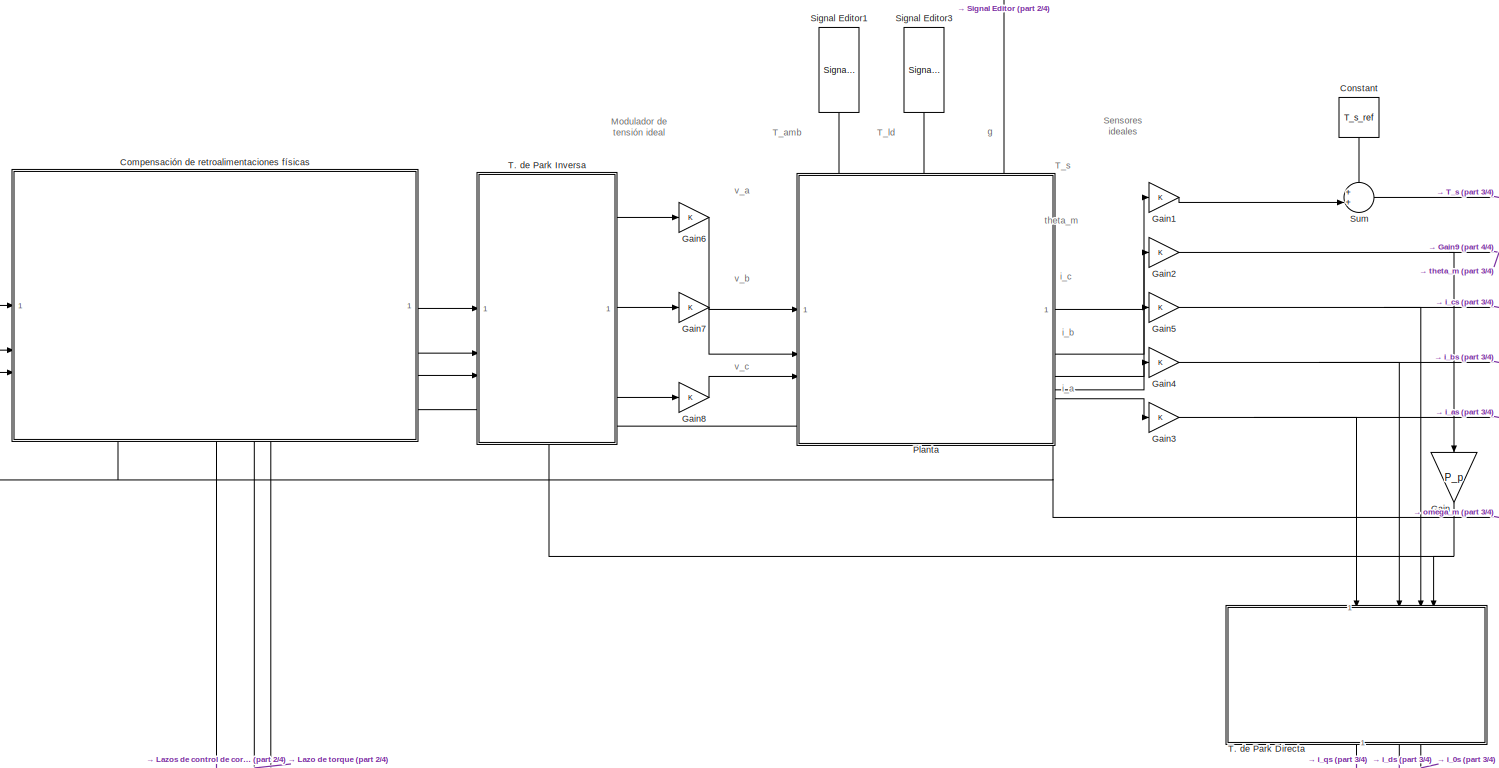
[diagram: root canvas - part 1/4, center side, full height]
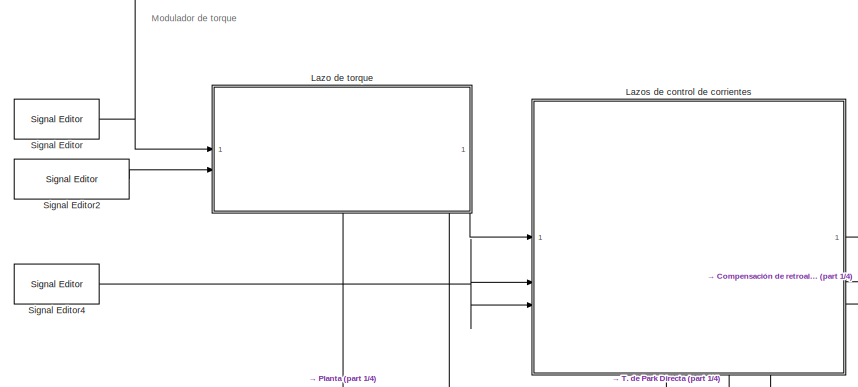
[diagram: root canvas - part 2/4, middle left region]
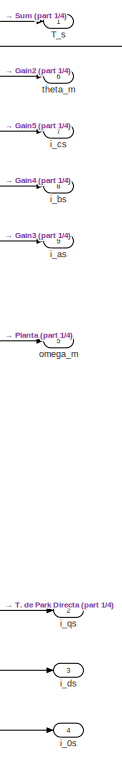
[diagram: root canvas - part 3/4, right side, full height]
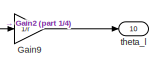
[diagram: root canvas - part 4/4, top right region]
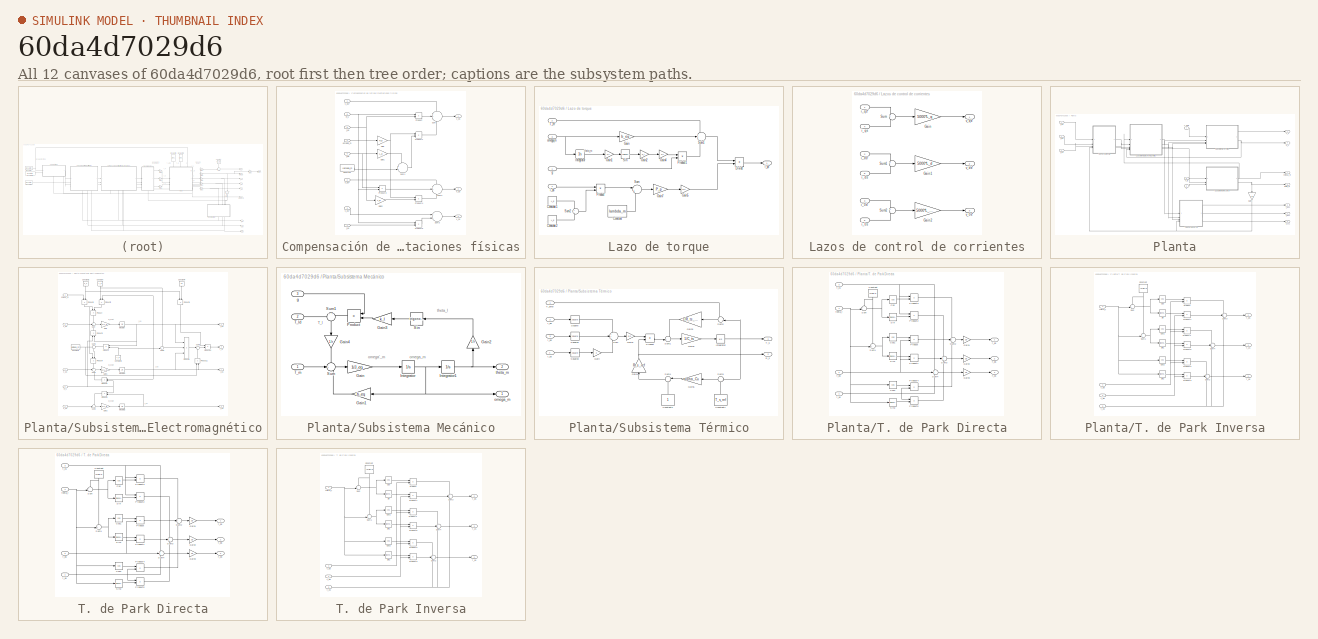
[diagram: thumbnail index - all 12 canvases of the model, root first then tree order]
MODEL slx_60da4d7029d6
KIND model
CONFIG AbsTol = auto
CONFIG EnableMultiTasking = off
CONFIG FixedStep = auto
CONFIG MaxStep = 1e-4
CONFIG MinStep = auto
CONFIG RelTol = 1e-3
CONFIG SampleTimeConstraint = Unconstrained
CONFIG SolverName = VariableStepAuto
CONFIG StartTime = 0.0
CONFIG StopTime = 10.0
BLOCK [SubSystem] Compensación de retroalimentaciones físicas
  NameLocation = top
  PortSchema = {"entries":[{"content":{"sides":[{"content":{"connectorIds":["In1","In2","In3"]},"type":"ConnectorPlacement.EquallySpacedRectSide","uuid":"b5ed5c11-da0b-4492-b556-0278b7db3ced"},{"content":{"connectorIds":["Out1","Out2","Out3"],"side":"RIGHT"},"type":"ConnectorPlacement.EquallySpacedRectSide","uuid":"4ffb454c-6b84-49e0-96c1-bca9b0e6e9fb"},{"content":{"side":"TOP"},"type":"ConnectorPlacement.Equall...<+421ch>
BLOCK [Constant] Compensación de retroalimentaciones físicas/Constant
  Value = lambda_m
BLOCK [Gain] Compensación de retroalimentaciones físicas/Gain
  Gain = P_p
BLOCK [Gain] Compensación de retroalimentaciones físicas/Gain1
  Gain = L_d
BLOCK [Gain] Compensación de retroalimentaciones físicas/Gain2
  Gain = L_q
BLOCK [Product] Compensación de retroalimentaciones físicas/Product
BLOCK [Product] Compensación de retroalimentaciones físicas/Product1
BLOCK [Product] Compensación de retroalimentaciones físicas/Product3
BLOCK [Product] Compensación de retroalimentaciones físicas/Product4
BLOCK [Product] Compensación de retroalimentaciones físicas/Product5
BLOCK [Inport] Compensación de retroalimentaciones físicas/R_s
  Port = 8
BLOCK [Sum] Compensación de retroalimentaciones físicas/Sum
  Inputs = +++
BLOCK [Sum] Compensación de retroalimentaciones físicas/Sum1
  Inputs = ++|
BLOCK [Sum] Compensación de retroalimentaciones físicas/Sum2
  Inputs = ++-
BLOCK [Sum] Compensación de retroalimentaciones físicas/Sum3
BLOCK [Inport] Compensación de retroalimentaciones físicas/i_0s
  Port = 7
BLOCK [Inport] Compensación de retroalimentaciones físicas/i_ds
  Port = 6
BLOCK [Inport] Compensación de retroalimentaciones físicas/i_qs
  Port = 5
BLOCK [Inport] Compensación de retroalimentaciones físicas/omega_m
  Port = 4
BLOCK [Outport] Compensación de retroalimentaciones físicas/v_0s
  Port = 3
BLOCK [Inport] Compensación de retroalimentaciones físicas/v_0s*
  Port = 3
BLOCK [Outport] Compensación de retroalimentaciones físicas/v_ds
  Port = 2
BLOCK [Inport] Compensación de retroalimentaciones físicas/v_ds*
  Port = 2
BLOCK [Outport] Compensación de retroalimentaciones físicas/v_qs
BLOCK [Inport] Compensación de retroalimentaciones físicas/v_qs*
BLOCK [Constant] Constant
  NameLocation = left
  Value = T_s_ref
BLOCK [Gain] Gain
  Gain = P_p
  NameLocation = left
BLOCK [Gain] Gain1
BLOCK [Gain] Gain2
BLOCK [Gain] Gain3
BLOCK [Gain] Gain4
BLOCK [Gain] Gain5
BLOCK [Gain] Gain6
BLOCK [Gain] Gain7
BLOCK [Gain] Gain8
BLOCK [Gain] Gain9
  Gain = 1/r
BLOCK [SubSystem] Lazo de torque
  NameLocation = top
  PortSchema = {"entries":[{"content":{"sides":[{"content":{"connectorIds":["In1","In2"]},"type":"ConnectorPlacement.EquallySpacedRectSide","uuid":"8206a9f4-776d-4700-8d59-1e7f7fd13a0b"},{"content":{"connectorIds":["Out1"],"side":"RIGHT"},"type":"ConnectorPlacement.EquallySpacedRectSide","uuid":"8dfad5cb-777d-40bc-a4fd-4d81a554efcb"},{"content":{"side":"TOP"},"type":"ConnectorPlacement.EquallySpacedRectSide","uu...<+383ch>
BLOCK [Constant] Lazo de torque/Constant
  Value = lambda_m
BLOCK [Constant] Lazo de torque/Constant1
  Value = L_d
BLOCK [Constant] Lazo de torque/Constant2
  Value = L_q
BLOCK [Product] Lazo de torque/Divide
  Inputs = */
BLOCK [Gain] Lazo de torque/Gain
  Gain = b_eq
BLOCK [Gain] Lazo de torque/Gain1
  Gain = 1/r
BLOCK [Gain] Lazo de torque/Gain2
  Gain = k_l
BLOCK [Gain] Lazo de torque/Gain4
  Gain = 1/r
BLOCK [Gain] Lazo de torque/Gain5
  Gain = 3/2
BLOCK [Gain] Lazo de torque/Gain7
  Gain = P_p
BLOCK [Integrator] Lazo de torque/Integrator
BLOCK [Product] Lazo de torque/Product
BLOCK [Product] Lazo de torque/Product1
BLOCK [Trigonometry] Lazo de torque/Sin
BLOCK [Sum] Lazo de torque/Sum
  Inputs = |++
BLOCK [Sum] Lazo de torque/Sum1
  Inputs = +++
BLOCK [Sum] Lazo de torque/Sum2
  Inputs = +-
BLOCK [Inport] Lazo de torque/T_m*
  Port = 2
BLOCK [Inport] Lazo de torque/g
BLOCK [Inport] Lazo de torque/i_ds
  Port = 4
BLOCK [Outport] Lazo de torque/i_qs*
BLOCK [Inport] Lazo de torque/omega_m
  Port = 3
BLOCK [SubSystem] Lazos de control de corrientes
  NameLocation = top
  PortSchema = {"entries":[{"content":{"sides":[{"content":{"connectorIds":["In1","In2","In3"]},"type":"ConnectorPlacement.EquallySpacedRectSide","uuid":"2f15f3ec-55f2-436f-b3eb-211a2ca8ae15"},{"content":{"connectorIds":["Out1","Out2","Out3"],"side":"RIGHT"},"type":"ConnectorPlacement.EquallySpacedRectSide","uuid":"f2c717e7-b0ea-44b1-badc-d00bfa8ee529"},{"content":{"side":"TOP"},"type":"ConnectorPlacement.Equall...<+409ch>
BLOCK [Gain] Lazos de control de corrientes/Gain
  Gain = 5000*L_q
BLOCK [Gain] Lazos de control de corrientes/Gain1
  Gain = 5000*L_d
BLOCK [Gain] Lazos de control de corrientes/Gain2
  Gain = 5000*L_ls
BLOCK [Sum] Lazos de control de corrientes/Sum
  Inputs = +-
BLOCK [Sum] Lazos de control de corrientes/Sum1
  Inputs = +-
BLOCK [Sum] Lazos de control de corrientes/Sum2
  Inputs = +-
BLOCK [Inport] Lazos de control de corrientes/i_0s
  Port = 6
BLOCK [Inport] Lazos de control de corrientes/i_0s*
  Port = 3
BLOCK [Inport] Lazos de control de corrientes/i_ds
  Port = 5
BLOCK [Inport] Lazos de control de corrientes/i_ds*
  Port = 2
BLOCK [Inport] Lazos de control de corrientes/i_qs
  Port = 4
BLOCK [Inport] Lazos de control de corrientes/i_qs*
BLOCK [Outport] Lazos de control de corrientes/v_0s*
  Port = 3
BLOCK [Outport] Lazos de control de corrientes/v_ds*
  Port = 2
BLOCK [Outport] Lazos de control de corrientes/v_qs*
BLOCK [SubSystem] Planta
  PortSchema = {"entries":[{"content":{"sides":[{"content":{"connectorIds":["In1","In2","In3"]},"type":"ConnectorPlacement.EquallySpacedRectSide","uuid":"9ff39df0-8326-46b1-b650-24ffd78ea64a"},{"content":{"connectorIds":["Out1","Out2","Out3","Out4","Out5"],"side":"RIGHT"},"type":"ConnectorPlacement.EquallySpacedRectSide","uuid":"3d3bc9f1-e392-438d-8ee1-0a3eb241c21d"},{"content":{"connectorIds":["In4","In5","In6"...<+454ch>
BLOCK [Gain] Planta/Gain
  Gain = P_p
  NameLocation = left
BLOCK [Outport] Planta/R_s
  Port = 6
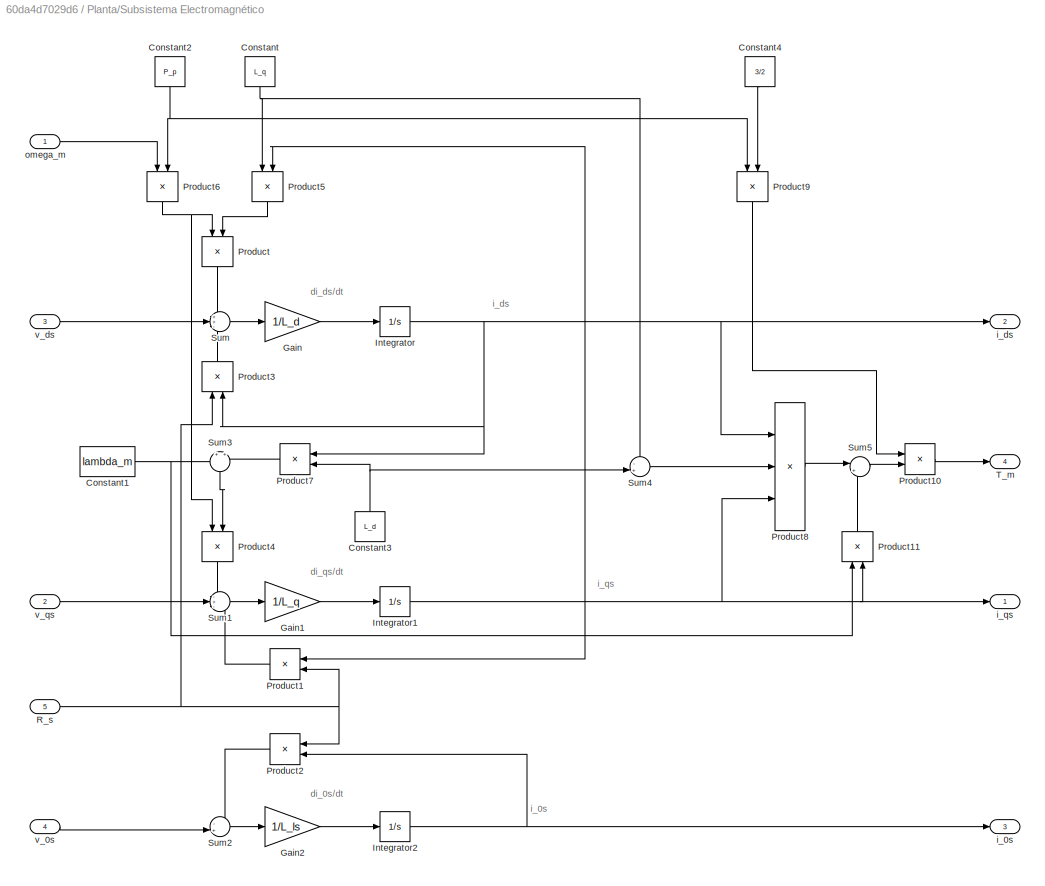
BLOCK [SubSystem] Planta/Subsistema Electromagnético
  NameLocation = top
BLOCK [Constant] Planta/Subsistema Electromagnético/Constant
  NameLocation = left
  Value = L_q
BLOCK [Constant] Planta/Subsistema Electromagnético/Constant1
  Value = lambda_m
BLOCK [Constant] Planta/Subsistema Electromagnético/Constant2
  NameLocation = left
  Value = P_p
BLOCK [Constant] Planta/Subsistema Electromagnético/Constant3
  NameLocation = right
  Value = L_d
BLOCK [Constant] Planta/Subsistema Electromagnético/Constant4
  NameLocation = left
  Value = 3/2
BLOCK [Gain] Planta/Subsistema Electromagnético/Gain
  Gain = 1/L_d
BLOCK [Gain] Planta/Subsistema Electromagnético/Gain1
  Gain = 1/L_q
BLOCK [Gain] Planta/Subsistema Electromagnético/Gain2
  Gain = 1/L_ls
BLOCK [Integrator] Planta/Subsistema Electromagnético/Integrator
BLOCK [Integrator] Planta/Subsistema Electromagnético/Integrator1
BLOCK [Integrator] Planta/Subsistema Electromagnético/Integrator2
BLOCK [Product] Planta/Subsistema Electromagnético/Product
  NameLocation = left
BLOCK [Product] Planta/Subsistema Electromagnético/Product1
BLOCK [Product] Planta/Subsistema Electromagnético/Product10
BLOCK [Product] Planta/Subsistema Electromagnético/Product11
  NameLocation = right
BLOCK [Product] Planta/Subsistema Electromagnético/Product2
BLOCK [Product] Planta/Subsistema Electromagnético/Product3
  NameLocation = left
BLOCK [Product] Planta/Subsistema Electromagnético/Product4
  NameLocation = left
BLOCK [Product] Planta/Subsistema Electromagnético/Product5
  NameLocation = left
BLOCK [Product] Planta/Subsistema Electromagnético/Product6
  NameLocation = left
BLOCK [Product] Planta/Subsistema Electromagnético/Product7
BLOCK [Product] Planta/Subsistema Electromagnético/Product8
  Inputs = 3
BLOCK [Product] Planta/Subsistema Electromagnético/Product9
  NameLocation = left
BLOCK [Inport] Planta/Subsistema Electromagnético/R_s
  Port = 5
BLOCK [Sum] Planta/Subsistema Electromagnético/Sum
  Inputs = ++-
BLOCK [Sum] Planta/Subsistema Electromagnético/Sum1
  Inputs = -+-
BLOCK [Sum] Planta/Subsistema Electromagnético/Sum2
  Inputs = -+|
BLOCK [Sum] Planta/Subsistema Electromagnético/Sum3
  Inputs = +|+
  NameLocation = left
BLOCK [Sum] Planta/Subsistema Electromagnético/Sum4
  Inputs = -+|
BLOCK [Sum] Planta/Subsistema Electromagnético/Sum5
  Inputs = |++
BLOCK [Outport] Planta/Subsistema Electromagnético/T_m
  Port = 4
BLOCK [Outport] Planta/Subsistema Electromagnético/i_0s
  Port = 3
BLOCK [Outport] Planta/Subsistema Electromagnético/i_ds
  Port = 2
BLOCK [Outport] Planta/Subsistema Electromagnético/i_qs
BLOCK [Inport] Planta/Subsistema Electromagnético/omega_m
BLOCK [Inport] Planta/Subsistema Electromagnético/v_0s
  Port = 4
BLOCK [Inport] Planta/Subsistema Electromagnético/v_ds
  Port = 3
BLOCK [Inport] Planta/Subsistema Electromagnético/v_qs
  Port = 2
BLOCK [SubSystem] Planta/Subsistema Mecánico
BLOCK [Gain] Planta/Subsistema Mecánico/Gain
  Gain = 1/J_eq
BLOCK [Gain] Planta/Subsistema Mecánico/Gain1
  Gain = b_eq
BLOCK [Gain] Planta/Subsistema Mecánico/Gain2
  Gain = 1/r
  NameLocation = right
BLOCK [Gain] Planta/Subsistema Mecánico/Gain3
  Gain = k_l
BLOCK [Gain] Planta/Subsistema Mecánico/Gain4
  Gain = 1/r
  NameLocation = right
BLOCK [Integrator] Planta/Subsistema Mecánico/Integrator
BLOCK [Integrator] Planta/Subsistema Mecánico/Integrator1
BLOCK [Product] Planta/Subsistema Mecánico/Product
BLOCK [Trigonometry] Planta/Subsistema Mecánico/Sin
BLOCK [Sum] Planta/Subsistema Mecánico/Sum
  Inputs = -+-
BLOCK [Sum] Planta/Subsistema Mecánico/Sum1
  NameLocation = left
BLOCK [Inport] Planta/Subsistema Mecánico/T_ld
  Port = 2
BLOCK [Inport] Planta/Subsistema Mecánico/T_m
BLOCK [Inport] Planta/Subsistema Mecánico/g
  Port = 3
BLOCK [Outport] Planta/Subsistema Mecánico/omega_m
BLOCK [Outport] Planta/Subsistema Mecánico/theta_m
  Port = 2
BLOCK [SubSystem] Planta/Subsistema Térmico
  NameLocation = top
BLOCK [Constant] Planta/Subsistema Térmico/Constant1
  NameLocation = right
  Value = T_s_ref
BLOCK [Constant] Planta/Subsistema Térmico/Constant2
  NameLocation = right
BLOCK [Gain] Planta/Subsistema Térmico/Gain
  Gain = 2
BLOCK [Gain] Planta/Subsistema Térmico/Gain1
  Gain = 3/2
BLOCK [Gain] Planta/Subsistema Térmico/Gain2
  Gain = 1/C_ts
BLOCK [Gain] Planta/Subsistema Térmico/Gain3
  Gain = 1/R_ts_amb
BLOCK [Gain] Planta/Subsistema Térmico/Gain4
  Gain = R_s_ref
  NameLocation = right
BLOCK [Gain] Planta/Subsistema Térmico/Gain5
  Gain = alpha_Cu
BLOCK [Integrator] Planta/Subsistema Térmico/Integrator
BLOCK [Product] Planta/Subsistema Térmico/Product
BLOCK [Outport] Planta/Subsistema Térmico/R_s
  Port = 2
BLOCK [Math] Planta/Subsistema Térmico/Square
  Operator = square
BLOCK [Math] Planta/Subsistema Térmico/Square1
  Operator = square
BLOCK [Math] Planta/Subsistema Térmico/Square2
  Operator = square
BLOCK [Sum] Planta/Subsistema Térmico/Sum
  Inputs = +++
BLOCK [Sum] Planta/Subsistema Térmico/Sum1
  Inputs = -+|
BLOCK [Sum] Planta/Subsistema Térmico/Sum2
  Inputs = -+|
BLOCK [Sum] Planta/Subsistema Térmico/Sum3
  Inputs = |+-
BLOCK [Sum] Planta/Subsistema Térmico/Sum4
  Inputs = |++
BLOCK [Inport] Planta/Subsistema Térmico/T_amb
BLOCK [Outport] Planta/Subsistema Térmico/T_s
BLOCK [Inport] Planta/Subsistema Térmico/i_0s
  Port = 4
BLOCK [Inport] Planta/Subsistema Térmico/i_ds
  Port = 3
BLOCK [Inport] Planta/Subsistema Térmico/i_qs
  Port = 2
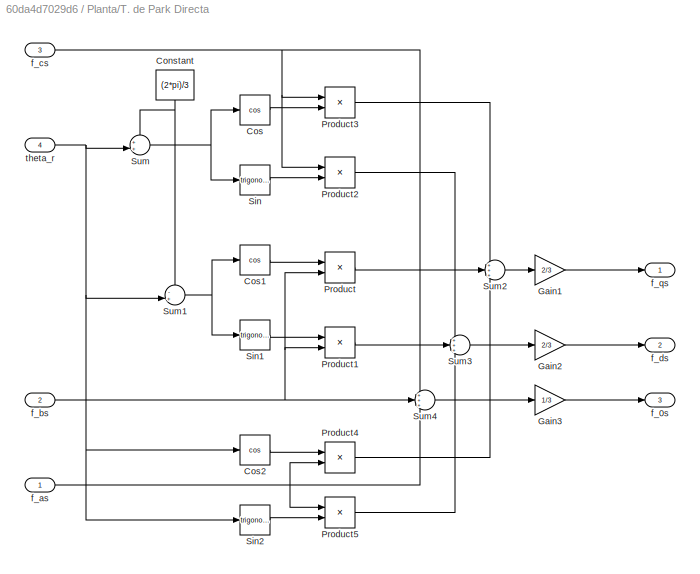
BLOCK [SubSystem] Planta/T. de Park Directa
  NameLocation = top
BLOCK [Constant] Planta/T. de Park Directa/Constant
  NameLocation = left
  Value = (2*pi)/3
BLOCK [Trigonometry] Planta/T. de Park Directa/Cos
  Operator = cos
BLOCK [Trigonometry] Planta/T. de Park Directa/Cos1
  Operator = cos
BLOCK [Trigonometry] Planta/T. de Park Directa/Cos2
  Operator = cos
BLOCK [Gain] Planta/T. de Park Directa/Gain1
  Gain = 2/3
BLOCK [Gain] Planta/T. de Park Directa/Gain2
  Gain = 2/3
BLOCK [Gain] Planta/T. de Park Directa/Gain3
  Gain = 1/3
BLOCK [Product] Planta/T. de Park Directa/Product
BLOCK [Product] Planta/T. de Park Directa/Product1
BLOCK [Product] Planta/T. de Park Directa/Product2
BLOCK [Product] Planta/T. de Park Directa/Product3
BLOCK [Product] Planta/T. de Park Directa/Product4
BLOCK [Product] Planta/T. de Park Directa/Product5
BLOCK [Trigonometry] Planta/T. de Park Directa/Sin
BLOCK [Trigonometry] Planta/T. de Park Directa/Sin1
BLOCK [Trigonometry] Planta/T. de Park Directa/Sin2
BLOCK [Sum] Planta/T. de Park Directa/Sum
  Inputs = ++|
BLOCK [Sum] Planta/T. de Park Directa/Sum1
  Inputs = -+|
BLOCK [Sum] Planta/T. de Park Directa/Sum2
  Inputs = +++
BLOCK [Sum] Planta/T. de Park Directa/Sum3
  Inputs = +++
BLOCK [Sum] Planta/T. de Park Directa/Sum4
  Inputs = +++
BLOCK [Outport] Planta/T. de Park Directa/f_0s
  Port = 3
BLOCK [Inport] Planta/T. de Park Directa/f_as
BLOCK [Inport] Planta/T. de Park Directa/f_bs
  Port = 2
BLOCK [Inport] Planta/T. de Park Directa/f_cs
  Port = 3
BLOCK [Outport] Planta/T. de Park Directa/f_ds
  Port = 2
BLOCK [Outport] Planta/T. de Park Directa/f_qs
BLOCK [Inport] Planta/T. de Park Directa/theta_r
  Port = 4
BLOCK [SubSystem] Planta/T. de Park Inversa
  NameLocation = top
BLOCK [Constant] Planta/T. de Park Inversa/Constant
  NameLocation = left
  Value = (2*pi)/3
BLOCK [Trigonometry] Planta/T. de Park Inversa/Cos
  Operator = cos
BLOCK [Trigonometry] Planta/T. de Park Inversa/Cos1
  Operator = cos
BLOCK [Trigonometry] Planta/T. de Park Inversa/Cos2
  Operator = cos
BLOCK [Product] Planta/T. de Park Inversa/Product
BLOCK [Product] Planta/T. de Park Inversa/Product1
BLOCK [Product] Planta/T. de Park Inversa/Product2
BLOCK [Product] Planta/T. de Park Inversa/Product3
BLOCK [Product] Planta/T. de Park Inversa/Product4
BLOCK [Product] Planta/T. de Park Inversa/Product5
BLOCK [Trigonometry] Planta/T. de Park Inversa/Sin
BLOCK [Trigonometry] Planta/T. de Park Inversa/Sin1
BLOCK [Trigonometry] Planta/T. de Park Inversa/Sin2
BLOCK [Sum] Planta/T. de Park Inversa/Sum
  Inputs = -+|
BLOCK [Sum] Planta/T. de Park Inversa/Sum1
  Inputs = ++|
BLOCK [Sum] Planta/T. de Park Inversa/Sum2
  Inputs = +++
BLOCK [Sum] Planta/T. de Park Inversa/Sum3
  Inputs = +++
BLOCK [Sum] Planta/T. de Park Inversa/Sum4
  Inputs = +++
BLOCK [Inport] Planta/T. de Park Inversa/f_0s
  Port = 3
BLOCK [Outport] Planta/T. de Park Inversa/f_as
BLOCK [Outport] Planta/T. de Park Inversa/f_bs
  Port = 2
BLOCK [Outport] Planta/T. de Park Inversa/f_cs
  Port = 3
BLOCK [Inport] Planta/T. de Park Inversa/f_ds
  Port = 2
BLOCK [Inport] Planta/T. de Park Inversa/f_qs
BLOCK [Inport] Planta/T. de Park Inversa/theta_r
  Port = 4
BLOCK [Inport] Planta/T_amb
  Port = 4
BLOCK [Inport] Planta/T_ld
  Port = 5
BLOCK [Outport] Planta/T_s
BLOCK [Inport] Planta/f_as
BLOCK [Outport] Planta/f_as1
  Port = 5
BLOCK [Inport] Planta/f_bs
  Port = 2
BLOCK [Outport] Planta/f_bs1
  Port = 4
BLOCK [Inport] Planta/f_cs
  Port = 3
BLOCK [Outport] Planta/f_cs1
  Port = 3
BLOCK [Inport] Planta/g
  Port = 6
BLOCK [Outport] Planta/omega_m
  Port = 7
BLOCK [Outport] Planta/theta_m
  Port = 2
BLOCK [Reference] Signal Editor  REF=SignalEditorBlockLib/Signal Editor
  LibrarySourceBlock = simulink/Sources/Signal Editor
  SourceBlock = SignalEditorBlockLib/Signal Editor
  SourceType = SignalEditor
  UserDataPersistent = on
BLOCK [Reference] Signal Editor1  REF=SignalEditorBlockLib/Signal Editor
  LibrarySourceBlock = simulink/Sources/Signal Editor
  NameLocation = left
  SourceBlock = SignalEditorBlockLib/Signal Editor
  SourceType = SignalEditor
  UserDataPersistent = on
BLOCK [Reference] Signal Editor2  REF=SignalEditorBlockLib/Signal Editor
  LibrarySourceBlock = simulink/Sources/Signal Editor
  SourceBlock = SignalEditorBlockLib/Signal Editor
  SourceType = SignalEditor
  UserDataPersistent = on
BLOCK [Reference] Signal Editor3  REF=SignalEditorBlockLib/Signal Editor
  LibrarySourceBlock = simulink/Sources/Signal Editor
  NameLocation = left
  SourceBlock = SignalEditorBlockLib/Signal Editor
  SourceType = SignalEditor
  UserDataPersistent = on
BLOCK [Reference] Signal Editor4  REF=SignalEditorBlockLib/Signal Editor
  LibrarySourceBlock = simulink/Sources/Signal Editor
  SourceBlock = SignalEditorBlockLib/Signal Editor
  SourceType = SignalEditor
  UserDataPersistent = on
BLOCK [Sum] Sum
  Inputs = ++|
BLOCK [SubSystem] T. de Park Directa
  NameLocation = right
BLOCK [Constant] T. de Park Directa/Constant
  NameLocation = left
  Value = (2*pi)/3
BLOCK [Trigonometry] T. de Park Directa/Cos
  Operator = cos
BLOCK [Trigonometry] T. de Park Directa/Cos1
  Operator = cos
BLOCK [Trigonometry] T. de Park Directa/Cos2
  Operator = cos
BLOCK [Gain] T. de Park Directa/Gain1
  Gain = 2/3
BLOCK [Gain] T. de Park Directa/Gain2
  Gain = 2/3
BLOCK [Gain] T. de Park Directa/Gain3
  Gain = 1/3
BLOCK [Product] T. de Park Directa/Product
BLOCK [Product] T. de Park Directa/Product1
BLOCK [Product] T. de Park Directa/Product2
BLOCK [Product] T. de Park Directa/Product3
BLOCK [Product] T. de Park Directa/Product4
BLOCK [Product] T. de Park Directa/Product5
BLOCK [Trigonometry] T. de Park Directa/Sin
BLOCK [Trigonometry] T. de Park Directa/Sin1
BLOCK [Trigonometry] T. de Park Directa/Sin2
BLOCK [Sum] T. de Park Directa/Sum
  Inputs = ++|
BLOCK [Sum] T. de Park Directa/Sum1
  Inputs = -+|
BLOCK [Sum] T. de Park Directa/Sum2
  Inputs = +++
BLOCK [Sum] T. de Park Directa/Sum3
  Inputs = +++
BLOCK [Sum] T. de Park Directa/Sum4
  Inputs = +++
BLOCK [Outport] T. de Park Directa/f_0s
  Port = 3
BLOCK [Inport] T. de Park Directa/f_as
BLOCK [Inport] T. de Park Directa/f_bs
  Port = 2
BLOCK [Inport] T. de Park Directa/f_cs
  Port = 3
BLOCK [Outport] T. de Park Directa/f_ds
  Port = 2
BLOCK [Outport] T. de Park Directa/f_qs
BLOCK [Inport] T. de Park Directa/theta_r
  Port = 4
BLOCK [SubSystem] T. de Park Inversa
  NameLocation = top
  PortSchema = {"entries":[{"content":{"sides":[{"content":{"connectorIds":["In1","In2","In3"]},"type":"ConnectorPlacement.EquallySpacedRectSide","uuid":"87a6b8c1-3fd8-4d15-81b7-6d19a59b6fe3"},{"content":{"connectorIds":["Out1","Out2","Out3"],"side":"RIGHT"},"type":"ConnectorPlacement.EquallySpacedRectSide","uuid":"ab7c1476-3519-4f3e-a604-adca334ac53f"},{"content":{"side":"TOP"},"type":"ConnectorPlacement.Equall...<+397ch>
BLOCK [Constant] T. de Park Inversa/Constant
  NameLocation = left
  Value = (2*pi)/3
BLOCK [Trigonometry] T. de Park Inversa/Cos
  Operator = cos
BLOCK [Trigonometry] T. de Park Inversa/Cos1
  Operator = cos
BLOCK [Trigonometry] T. de Park Inversa/Cos2
  Operator = cos
BLOCK [Product] T. de Park Inversa/Product
BLOCK [Product] T. de Park Inversa/Product1
BLOCK [Product] T. de Park Inversa/Product2
BLOCK [Product] T. de Park Inversa/Product3
BLOCK [Product] T. de Park Inversa/Product4
BLOCK [Product] T. de Park Inversa/Product5
BLOCK [Trigonometry] T. de Park Inversa/Sin
BLOCK [Trigonometry] T. de Park Inversa/Sin1
BLOCK [Trigonometry] T. de Park Inversa/Sin2
BLOCK [Sum] T. de Park Inversa/Sum
  Inputs = -+|
BLOCK [Sum] T. de Park Inversa/Sum1
  Inputs = ++|
BLOCK [Sum] T. de Park Inversa/Sum2
  Inputs = +++
BLOCK [Sum] T. de Park Inversa/Sum3
  Inputs = +++
BLOCK [Sum] T. de Park Inversa/Sum4
  Inputs = +++
BLOCK [Inport] T. de Park Inversa/f_0s
  Port = 3
BLOCK [Outport] T. de Park Inversa/f_as
BLOCK [Outport] T. de Park Inversa/f_bs
  Port = 2
BLOCK [Outport] T. de Park Inversa/f_cs
  Port = 3
BLOCK [Inport] T. de Park Inversa/f_ds
  Port = 2
BLOCK [Inport] T. de Park Inversa/f_qs
BLOCK [Inport] T. de Park Inversa/theta_r
  Port = 4
BLOCK [Outport] T_s
BLOCK [Outport] i_0s
  Port = 4
BLOCK [Outport] i_as
  Port = 9
BLOCK [Outport] i_bs
  Port = 8
BLOCK [Outport] i_cs
  Port = 7
BLOCK [Outport] i_ds
  Port = 3
BLOCK [Outport] i_qs
  Port = 2
BLOCK [Outport] omega_m
  Port = 5
BLOCK [Outport] theta_l
  Port = 10
BLOCK [Outport] theta_m
  Port = 6
ANNOTATION (root): Modulador de tensión ideal
ANNOTATION (root): Sensores ideales
ANNOTATION (root): Modulador de torque
ANNOTATION (root): T_amb
ANNOTATION (root): T_ld
ANNOTATION (root): T_s
ANNOTATION (root): g
ANNOTATION (root): i_a
ANNOTATION (root): i_b
ANNOTATION (root): i_c
ANNOTATION (root): theta_m
ANNOTATION (root): v_a
ANNOTATION (root): v_b
ANNOTATION (root): v_c
ANNOTATION Lazo de torque: theta_m
ANNOTATION Planta/Subsistema Electromagnético: di_0s/dt
ANNOTATION Planta/Subsistema Electromagnético: di_ds/dt
ANNOTATION Planta/Subsistema Electromagnético: di_qs/dt
ANNOTATION Planta/Subsistema Electromagnético: i_0s
ANNOTATION Planta/Subsistema Electromagnético: i_ds
ANNOTATION Planta/Subsistema Electromagnético: i_qs
ANNOTATION Planta/Subsistema Mecánico: T_l
ANNOTATION Planta/Subsistema Mecánico: omega'_m
ANNOTATION Planta/Subsistema Mecánico: omega_m
ANNOTATION Planta/Subsistema Mecánico: theta_l
LINE Compensación de retroalimentaciones físicas/Constant:1 -> Compensación de retroalimentaciones físicas/Sum1:2
LINE Compensación de retroalimentaciones físicas/Gain1:1 -> Compensación de retroalimentaciones físicas/Sum1:1
LINE Compensación de retroalimentaciones físicas/Gain2:1 -> Compensación de retroalimentaciones físicas/Product4:2
NET Compensación de retroalimentaciones físicas/Gain:1 -> Compensación de retroalimentaciones físicas/Product1:1, Compensación de retroalimentaciones físicas/Product4:1
LINE Compensación de retroalimentaciones físicas/Product1:1 -> Compensación de retroalimentaciones físicas/Sum:3
LINE Compensación de retroalimentaciones físicas/Product3:1 -> Compensación de retroalimentaciones físicas/Sum2:2
LINE Compensación de retroalimentaciones físicas/Product4:1 -> Compensación de retroalimentaciones físicas/Sum2:3
LINE Compensación de retroalimentaciones físicas/Product5:1 -> Compensación de retroalimentaciones físicas/Sum3:2
LINE Compensación de retroalimentaciones físicas/Product:1 -> Compensación de retroalimentaciones físicas/Sum:2
NET Compensación de retroalimentaciones físicas/R_s:1 -> Compensación de retroalimentaciones físicas/Product3:2, Compensación de retroalimentaciones físicas/Product5:1, Compensación de retroalimentaciones físicas/Product:1
LINE Compensación de retroalimentaciones físicas/Sum1:1 -> Compensación de retroalimentaciones físicas/Product1:2
LINE Compensación de retroalimentaciones físicas/Sum2:1 -> Compensación de retroalimentaciones físicas/v_ds:1
LINE Compensación de retroalimentaciones físicas/Sum3:1 -> Compensación de retroalimentaciones físicas/v_0s:1
LINE Compensación de retroalimentaciones físicas/Sum:1 -> Compensación de retroalimentaciones físicas/v_qs:1
LINE Compensación de retroalimentaciones físicas/i_0s:1 -> Compensación de retroalimentaciones físicas/Product5:2
NET Compensación de retroalimentaciones físicas/i_ds:1 -> Compensación de retroalimentaciones físicas/Gain1:1, Compensación de retroalimentaciones físicas/Product3:1
NET Compensación de retroalimentaciones físicas/i_qs:1 -> Compensación de retroalimentaciones físicas/Gain2:1, Compensación de retroalimentaciones físicas/Product:2
LINE Compensación de retroalimentaciones físicas/omega_m:1 -> Compensación de retroalimentaciones físicas/Gain:1
LINE Compensación de retroalimentaciones físicas/v_0s*:1 -> Compensación de retroalimentaciones físicas/Sum3:1
LINE Compensación de retroalimentaciones físicas/v_ds*:1 -> Compensación de retroalimentaciones físicas/Sum2:1
LINE Compensación de retroalimentaciones físicas/v_qs*:1 -> Compensación de retroalimentaciones físicas/Sum:1
LINE Compensación de retroalimentaciones físicas:1 -> T. de Park Inversa:1
LINE Compensación de retroalimentaciones físicas:2 -> T. de Park Inversa:2
LINE Compensación de retroalimentaciones físicas:3 -> T. de Park Inversa:3
LINE Constant:1 -> Sum:1
LINE Gain1:1 -> Sum:2
NET Gain2:1 -> Gain9:1, Gain:1, theta_m:1
NET Gain3:1 -> T. de Park Directa:1, i_as:1
NET Gain4:1 -> T. de Park Directa:2, i_bs:1
NET Gain5:1 -> T. de Park Directa:3, i_cs:1
LINE Gain6:1 -> Planta:1
LINE Gain7:1 -> Planta:2
LINE Gain8:1 -> Planta:3
LINE Gain9:1 -> theta_l:1
NET Gain:1 -> T. de Park Directa:4, T. de Park Inversa:4
LINE Lazo de torque/Constant1:1 -> Lazo de torque/Sum2:1
LINE Lazo de torque/Constant2:1 -> Lazo de torque/Sum2:2
LINE Lazo de torque/Constant:1 -> Lazo de torque/Sum:2
LINE Lazo de torque/Divide:1 -> Lazo de torque/i_qs*:1
LINE Lazo de torque/Gain1:1 -> Lazo de torque/Sin:1
LINE Lazo de torque/Gain2:1 -> Lazo de torque/Gain4:1
LINE Lazo de torque/Gain4:1 -> Lazo de torque/Product1:1
LINE Lazo de torque/Gain5:1 -> Lazo de torque/Divide:2
LINE Lazo de torque/Gain7:1 -> Lazo de torque/Gain5:1
LINE Lazo de torque/Gain:1 -> Lazo de torque/Sum1:2
LINE Lazo de torque/Integrator:1 -> Lazo de torque/Gain1:1
LINE Lazo de torque/Product1:1 -> Lazo de torque/Sum1:3
LINE Lazo de torque/Product:1 -> Lazo de torque/Sum:1
LINE Lazo de torque/Sin:1 -> Lazo de torque/Gain2:1
LINE Lazo de torque/Sum1:1 -> Lazo de torque/Divide:1
LINE Lazo de torque/Sum2:1 -> Lazo de torque/Product:2
LINE Lazo de torque/Sum:1 -> Lazo de torque/Gain7:1
LINE Lazo de torque/T_m*:1 -> Lazo de torque/Sum1:1
LINE Lazo de torque/g:1 -> Lazo de torque/Product1:2
LINE Lazo de torque/i_ds:1 -> Lazo de torque/Product:1
NET Lazo de torque/omega_m:1 -> Lazo de torque/Gain:1, Lazo de torque/Integrator:1
LINE Lazo de torque:1 -> Lazos de control de corrientes:1
LINE Lazos de control de corrientes/Gain1:1 -> Lazos de control de corrientes/v_ds*:1
LINE Lazos de control de corrientes/Gain2:1 -> Lazos de control de corrientes/v_0s*:1
LINE Lazos de control de corrientes/Gain:1 -> Lazos de control de corrientes/v_qs*:1
LINE Lazos de control de corrientes/Sum1:1 -> Lazos de control de corrientes/Gain1:1
LINE Lazos de control de corrientes/Sum2:1 -> Lazos de control de corrientes/Gain2:1
LINE Lazos de control de corrientes/Sum:1 -> Lazos de control de corrientes/Gain:1
LINE Lazos de control de corrientes/i_0s*:1 -> Lazos de control de corrientes/Sum2:1
LINE Lazos de control de corrientes/i_0s:1 -> Lazos de control de corrientes/Sum2:2
LINE Lazos de control de corrientes/i_ds*:1 -> Lazos de control de corrientes/Sum1:1
LINE Lazos de control de corrientes/i_ds:1 -> Lazos de control de corrientes/Sum1:2
LINE Lazos de control de corrientes/i_qs*:1 -> Lazos de control de corrientes/Sum:1
LINE Lazos de control de corrientes/i_qs:1 -> Lazos de control de corrientes/Sum:2
LINE Lazos de control de corrientes:1 -> Compensación de retroalimentaciones físicas:1
LINE Lazos de control de corrientes:2 -> Compensación de retroalimentaciones físicas:2
LINE Lazos de control de corrientes:3 -> Compensación de retroalimentaciones físicas:3
NET Planta/Gain:1 -> Planta/T. de Park Directa:4, Planta/T. de Park Inversa:4
NET Planta/Subsistema Electromagnético/Constant1:1 -> Planta/Subsistema Electromagnético/Product11:1, Planta/Subsistema Electromagnético/Sum3:1
NET Planta/Subsistema Electromagnético/Constant2:1 -> Planta/Subsistema Electromagnético/Product6:2, Planta/Subsistema Electromagnético/Product9:1
NET Planta/Subsistema Electromagnético/Constant3:1 -> Planta/Subsistema Electromagnético/Product7:2, Planta/Subsistema Electromagnético/Sum4:2
LINE Planta/Subsistema Electromagnético/Constant4:1 -> Planta/Subsistema Electromagnético/Product9:2
NET Planta/Subsistema Electromagnético/Constant:1 -> Planta/Subsistema Electromagnético/Product5:1, Planta/Subsistema Electromagnético/Sum4:1
LINE Planta/Subsistema Electromagnético/Gain1:1 -> Planta/Subsistema Electromagnético/Integrator1:1
LINE Planta/Subsistema Electromagnético/Gain2:1 -> Planta/Subsistema Electromagnético/Integrator2:1
LINE Planta/Subsistema Electromagnético/Gain:1 -> Planta/Subsistema Electromagnético/Integrator:1
NET Planta/Subsistema Electromagnético/Integrator1:1 -> Planta/Subsistema Electromagnético/Product11:2, Planta/Subsistema Electromagnético/Product1:1, Planta/Subsistema Electromagnético/Product5:2, Planta/Subsistema Electromagnético/Product8:3, Planta/Subsistema Electromagnético/i_qs:1
NET Planta/Subsistema Electromagnético/Integrator2:1 -> Planta/Subsistema Electromagnético/Product2:2, Planta/Subsistema Electromagnético/i_0s:1
NET Planta/Subsistema Electromagnético/Integrator:1 -> Planta/Subsistema Electromagnético/Product3:2, Planta/Subsistema Electromagnético/Product7:1, Planta/Subsistema Electromagnético/Product8:1, Planta/Subsistema Electromagnético/i_ds:1
LINE Planta/Subsistema Electromagnético/Product10:1 -> Planta/Subsistema Electromagnético/T_m:1
LINE Planta/Subsistema Electromagnético/Product11:1 -> Planta/Subsistema Electromagnético/Sum5:2
LINE Planta/Subsistema Electromagnético/Product1:1 -> Planta/Subsistema Electromagnético/Sum1:3
LINE Planta/Subsistema Electromagnético/Product2:1 -> Planta/Subsistema Electromagnético/Sum2:1
LINE Planta/Subsistema Electromagnético/Product3:1 -> Planta/Subsistema Electromagnético/Sum:3
LINE Planta/Subsistema Electromagnético/Product4:1 -> Planta/Subsistema Electromagnético/Sum1:1
LINE Planta/Subsistema Electromagnético/Product5:1 -> Planta/Subsistema Electromagnético/Product:2
NET Planta/Subsistema Electromagnético/Product6:1 -> Planta/Subsistema Electromagnético/Product4:1, Planta/Subsistema Electromagnético/Product:1
LINE Planta/Subsistema Electromagnético/Product7:1 -> Planta/Subsistema Electromagnético/Sum3:2
LINE Planta/Subsistema Electromagnético/Product8:1 -> Planta/Subsistema Electromagnético/Sum5:1
LINE Planta/Subsistema Electromagnético/Product9:1 -> Planta/Subsistema Electromagnético/Product10:1
LINE Planta/Subsistema Electromagnético/Product:1 -> Planta/Subsistema Electromagnético/Sum:1
NET Planta/Subsistema Electromagnético/R_s:1 -> Planta/Subsistema Electromagnético/Product1:2, Planta/Subsistema Electromagnético/Product2:1, Planta/Subsistema Electromagnético/Product3:1
LINE Planta/Subsistema Electromagnético/Sum1:1 -> Planta/Subsistema Electromagnético/Gain1:1
LINE Planta/Subsistema Electromagnético/Sum2:1 -> Planta/Subsistema Electromagnético/Gain2:1
LINE Planta/Subsistema Electromagnético/Sum3:1 -> Planta/Subsistema Electromagnético/Product4:2
LINE Planta/Subsistema Electromagnético/Sum4:1 -> Planta/Subsistema Electromagnético/Product8:2
LINE Planta/Subsistema Electromagnético/Sum5:1 -> Planta/Subsistema Electromagnético/Product10:2
LINE Planta/Subsistema Electromagnético/Sum:1 -> Planta/Subsistema Electromagnético/Gain:1
LINE Planta/Subsistema Electromagnético/omega_m:1 -> Planta/Subsistema Electromagnético/Product6:1
LINE Planta/Subsistema Electromagnético/v_0s:1 -> Planta/Subsistema Electromagnético/Sum2:2
LINE Planta/Subsistema Electromagnético/v_ds:1 -> Planta/Subsistema Electromagnético/Sum:2
LINE Planta/Subsistema Electromagnético/v_qs:1 -> Planta/Subsistema Electromagnético/Sum1:2
NET Planta/Subsistema Electromagnético:1 -> Planta/Subsistema Térmico:2, Planta/T. de Park Inversa:1
NET Planta/Subsistema Electromagnético:2 -> Planta/Subsistema Térmico:3, Planta/T. de Park Inversa:2
NET Planta/Subsistema Electromagnético:3 -> Planta/Subsistema Térmico:4, Planta/T. de Park Inversa:3
LINE Planta/Subsistema Electromagnético:4 -> Planta/Subsistema Mecánico:1
LINE Planta/Subsistema Mecánico/Gain1:1 -> Planta/Subsistema Mecánico/Sum:3
LINE Planta/Subsistema Mecánico/Gain2:1 -> Planta/Subsistema Mecánico/Sin:1
LINE Planta/Subsistema Mecánico/Gain3:1 -> Planta/Subsistema Mecánico/Product:2
LINE Planta/Subsistema Mecánico/Gain4:1 -> Planta/Subsistema Mecánico/Sum:1
LINE Planta/Subsistema Mecánico/Gain:1 -> Planta/Subsistema Mecánico/Integrator:1
NET Planta/Subsistema Mecánico/Integrator1:1 -> Planta/Subsistema Mecánico/Gain2:1, Planta/Subsistema Mecánico/theta_m:1
NET Planta/Subsistema Mecánico/Integrator:1 -> Planta/Subsistema Mecánico/Gain1:1, Planta/Subsistema Mecánico/Integrator1:1, Planta/Subsistema Mecánico/omega_m:1
LINE Planta/Subsistema Mecánico/Product:1 -> Planta/Subsistema Mecánico/Sum1:2
LINE Planta/Subsistema Mecánico/Sin:1 -> Planta/Subsistema Mecánico/Gain3:1
LINE Planta/Subsistema Mecánico/Sum1:1 -> Planta/Subsistema Mecánico/Gain4:1
LINE Planta/Subsistema Mecánico/Sum:1 -> Planta/Subsistema Mecánico/Gain:1
LINE Planta/Subsistema Mecánico/T_ld:1 -> Planta/Subsistema Mecánico/Sum1:1
LINE Planta/Subsistema Mecánico/T_m:1 -> Planta/Subsistema Mecánico/Sum:2
LINE Planta/Subsistema Mecánico/g:1 -> Planta/Subsistema Mecánico/Product:1
NET Planta/Subsistema Mecánico:1 -> Planta/Subsistema Electromagnético:1, Planta/omega_m:1
NET Planta/Subsistema Mecánico:2 -> Planta/Gain:1, Planta/theta_m:1
LINE Planta/Subsistema Térmico/Constant1:1 -> Planta/Subsistema Térmico/Sum3:2
LINE Planta/Subsistema Térmico/Constant2:1 -> Planta/Subsistema Térmico/Sum4:2
LINE Planta/Subsistema Térmico/Gain1:1 -> Planta/Subsistema Térmico/Product:1
LINE Planta/Subsistema Térmico/Gain2:1 -> Planta/Subsistema Térmico/Integrator:1
LINE Planta/Subsistema Térmico/Gain3:1 -> Planta/Subsistema Térmico/Sum1:1
NET Planta/Subsistema Térmico/Gain4:1 -> Planta/Subsistema Térmico/Product:2, Planta/Subsistema Térmico/R_s:1
LINE Planta/Subsistema Térmico/Gain5:1 -> Planta/Subsistema Térmico/Sum4:1
LINE Planta/Subsistema Térmico/Gain:1 -> Planta/Subsistema Térmico/Sum:3
NET Planta/Subsistema Térmico/Integrator:1 -> Planta/Subsistema Térmico/Sum2:2, Planta/Subsistema Térmico/Sum3:1, Planta/Subsistema Térmico/T_s:1
LINE Planta/Subsistema Térmico/Product:1 -> Planta/Subsistema Térmico/Sum1:2
LINE Planta/Subsistema Térmico/Square1:1 -> Planta/Subsistema Térmico/Sum:2
LINE Planta/Subsistema Térmico/Square2:1 -> Planta/Subsistema Térmico/Gain:1
LINE Planta/Subsistema Térmico/Square:1 -> Planta/Subsistema Térmico/Sum:1
LINE Planta/Subsistema Térmico/Sum1:1 -> Planta/Subsistema Térmico/Gain2:1
LINE Planta/Subsistema Térmico/Sum2:1 -> Planta/Subsistema Térmico/Gain3:1
LINE Planta/Subsistema Térmico/Sum3:1 -> Planta/Subsistema Térmico/Gain5:1
LINE Planta/Subsistema Térmico/Sum4:1 -> Planta/Subsistema Térmico/Gain4:1
LINE Planta/Subsistema Térmico/Sum:1 -> Planta/Subsistema Térmico/Gain1:1
LINE Planta/Subsistema Térmico/T_amb:1 -> Planta/Subsistema Térmico/Sum2:1
LINE Planta/Subsistema Térmico/i_0s:1 -> Planta/Subsistema Térmico/Square2:1
LINE Planta/Subsistema Térmico/i_ds:1 -> Planta/Subsistema Térmico/Square1:1
LINE Planta/Subsistema Térmico/i_qs:1 -> Planta/Subsistema Térmico/Square:1
LINE Planta/Subsistema Térmico:1 -> Planta/T_s:1
NET Planta/Subsistema Térmico:2 -> Planta/R_s:1, Planta/Subsistema Electromagnético:5
NET Planta/T. de Park Directa/Constant:1 -> Planta/T. de Park Directa/Sum1:1, Planta/T. de Park Directa/Sum:1
LINE Planta/T. de Park Directa/Cos1:1 -> Planta/T. de Park Directa/Product:1
LINE Planta/T. de Park Directa/Cos2:1 -> Planta/T. de Park Directa/Product4:1
LINE Planta/T. de Park Directa/Cos:1 -> Planta/T. de Park Directa/Product3:2
LINE Planta/T. de Park Directa/Gain1:1 -> Planta/T. de Park Directa/f_qs:1
LINE Planta/T. de Park Directa/Gain2:1 -> Planta/T. de Park Directa/f_ds:1
LINE Planta/T. de Park Directa/Gain3:1 -> Planta/T. de Park Directa/f_0s:1
LINE Planta/T. de Park Directa/Product1:1 -> Planta/T. de Park Directa/Sum3:2
LINE Planta/T. de Park Directa/Product2:1 -> Planta/T. de Park Directa/Sum3:1
LINE Planta/T. de Park Directa/Product3:1 -> Planta/T. de Park Directa/Sum2:1
LINE Planta/T. de Park Directa/Product4:1 -> Planta/T. de Park Directa/Sum2:3
LINE Planta/T. de Park Directa/Product5:1 -> Planta/T. de Park Directa/Sum3:3
LINE Planta/T. de Park Directa/Product:1 -> Planta/T. de Park Directa/Sum2:2
LINE Planta/T. de Park Directa/Sin1:1 -> Planta/T. de Park Directa/Product1:1
LINE Planta/T. de Park Directa/Sin2:1 -> Planta/T. de Park Directa/Product5:2
LINE Planta/T. de Park Directa/Sin:1 -> Planta/T. de Park Directa/Product2:2
NET Planta/T. de Park Directa/Sum1:1 -> Planta/T. de Park Directa/Cos1:1, Planta/T. de Park Directa/Sin1:1
LINE Planta/T. de Park Directa/Sum2:1 -> Planta/T. de Park Directa/Gain1:1
LINE Planta/T. de Park Directa/Sum3:1 -> Planta/T. de Park Directa/Gain2:1
LINE Planta/T. de Park Directa/Sum4:1 -> Planta/T. de Park Directa/Gain3:1
NET Planta/T. de Park Directa/Sum:1 -> Planta/T. de Park Directa/Cos:1, Planta/T. de Park Directa/Sin:1
NET Planta/T. de Park Directa/f_as:1 -> Planta/T. de Park Directa/Product4:2, Planta/T. de Park Directa/Product5:1, Planta/T. de Park Directa/Sum4:3
NET Planta/T. de Park Directa/f_bs:1 -> Planta/T. de Park Directa/Product1:2, Planta/T. de Park Directa/Product:2, Planta/T. de Park Directa/Sum4:2
NET Planta/T. de Park Directa/f_cs:1 -> Planta/T. de Park Directa/Product2:1, Planta/T. de Park Directa/Product3:1, Planta/T. de Park Directa/Sum4:1
NET Planta/T. de Park Directa/theta_r:1 -> Planta/T. de Park Directa/Cos2:1, Planta/T. de Park Directa/Sin2:1, Planta/T. de Park Directa/Sum1:2, Planta/T. de Park Directa/Sum:2
LINE Planta/T. de Park Directa:1 -> Planta/Subsistema Electromagnético:2
LINE Planta/T. de Park Directa:2 -> Planta/Subsistema Electromagnético:3
LINE Planta/T. de Park Directa:3 -> Planta/Subsistema Electromagnético:4
NET Planta/T. de Park Inversa/Constant:1 -> Planta/T. de Park Inversa/Sum1:1, Planta/T. de Park Inversa/Sum:1
LINE Planta/T. de Park Inversa/Cos1:1 -> Planta/T. de Park Inversa/Product4:1
LINE Planta/T. de Park Inversa/Cos2:1 -> Planta/T. de Park Inversa/Product2:1
LINE Planta/T. de Park Inversa/Cos:1 -> Planta/T. de Park Inversa/Product:1
LINE Planta/T. de Park Inversa/Product1:1 -> Planta/T. de Park Inversa/Sum3:2
LINE Planta/T. de Park Inversa/Product2:1 -> Planta/T. de Park Inversa/Sum2:1
LINE Planta/T. de Park Inversa/Product3:1 -> Planta/T. de Park Inversa/Sum2:2
LINE Planta/T. de Park Inversa/Product4:1 -> Planta/T. de Park Inversa/Sum4:1
LINE Planta/T. de Park Inversa/Product5:1 -> Planta/T. de Park Inversa/Sum4:2
LINE Planta/T. de Park Inversa/Product:1 -> Planta/T. de Park Inversa/Sum3:1
LINE Planta/T. de Park Inversa/Sin1:1 -> Planta/T. de Park Inversa/Product5:1
LINE Planta/T. de Park Inversa/Sin2:1 -> Planta/T. de Park Inversa/Product3:1
LINE Planta/T. de Park Inversa/Sin:1 -> Planta/T. de Park Inversa/Product1:1
NET Planta/T. de Park Inversa/Sum1:1 -> Planta/T. de Park Inversa/Cos1:1, Planta/T. de Park Inversa/Sin1:1
LINE Planta/T. de Park Inversa/Sum2:1 -> Planta/T. de Park Inversa/f_as:1
LINE Planta/T. de Park Inversa/Sum3:1 -> Planta/T. de Park Inversa/f_bs:1
LINE Planta/T. de Park Inversa/Sum4:1 -> Planta/T. de Park Inversa/f_cs:1
NET Planta/T. de Park Inversa/Sum:1 -> Planta/T. de Park Inversa/Cos:1, Planta/T. de Park Inversa/Sin:1
NET Planta/T. de Park Inversa/f_0s:1 -> Planta/T. de Park Inversa/Sum2:3, Planta/T. de Park Inversa/Sum3:3, Planta/T. de Park Inversa/Sum4:3
NET Planta/T. de Park Inversa/f_ds:1 -> Planta/T. de Park Inversa/Product1:2, Planta/T. de Park Inversa/Product3:2, Planta/T. de Park Inversa/Product5:2
NET Planta/T. de Park Inversa/f_qs:1 -> Planta/T. de Park Inversa/Product2:2, Planta/T. de Park Inversa/Product4:2, Planta/T. de Park Inversa/Product:2
NET Planta/T. de Park Inversa/theta_r:1 -> Planta/T. de Park Inversa/Cos2:1, Planta/T. de Park Inversa/Sin2:1, Planta/T. de Park Inversa/Sum1:2, Planta/T. de Park Inversa/Sum:2
LINE Planta/T. de Park Inversa:1 -> Planta/f_as1:1
LINE Planta/T. de Park Inversa:2 -> Planta/f_bs1:1
LINE Planta/T. de Park Inversa:3 -> Planta/f_cs1:1
LINE Planta/T_amb:1 -> Planta/Subsistema Térmico:1
LINE Planta/T_ld:1 -> Planta/Subsistema Mecánico:2
LINE Planta/f_as:1 -> Planta/T. de Park Directa:1
LINE Planta/f_bs:1 -> Planta/T. de Park Directa:2
LINE Planta/f_cs:1 -> Planta/T. de Park Directa:3
LINE Planta/g:1 -> Planta/Subsistema Mecánico:3
LINE Planta:1 -> Gain1:1
LINE Planta:2 -> Gain2:1
LINE Planta:3 -> Gain5:1
LINE Planta:4 -> Gain4:1
LINE Planta:5 -> Gain3:1
LINE Planta:6 -> Compensación de retroalimentaciones físicas:8
NET Planta:7 -> Compensación de retroalimentaciones físicas:4, Lazo de torque:3, omega_m:1
LINE Signal Editor1:1 -> Planta:4
LINE Signal Editor2:1 -> Lazo de torque:2
LINE Signal Editor3:1 -> Planta:5
NET Signal Editor4:1 -> Lazos de control de corrientes:2, Lazos de control de corrientes:3
NET Signal Editor:1 -> Lazo de torque:1, Planta:6
LINE Sum:1 -> T_s:1
NET T. de Park Directa/Constant:1 -> T. de Park Directa/Sum1:1, T. de Park Directa/Sum:1
LINE T. de Park Directa/Cos1:1 -> T. de Park Directa/Product:1
LINE T. de Park Directa/Cos2:1 -> T. de Park Directa/Product4:1
LINE T. de Park Directa/Cos:1 -> T. de Park Directa/Product3:2
LINE T. de Park Directa/Gain1:1 -> T. de Park Directa/f_qs:1
LINE T. de Park Directa/Gain2:1 -> T. de Park Directa/f_ds:1
LINE T. de Park Directa/Gain3:1 -> T. de Park Directa/f_0s:1
LINE T. de Park Directa/Product1:1 -> T. de Park Directa/Sum3:2
LINE T. de Park Directa/Product2:1 -> T. de Park Directa/Sum3:1
LINE T. de Park Directa/Product3:1 -> T. de Park Directa/Sum2:1
LINE T. de Park Directa/Product4:1 -> T. de Park Directa/Sum2:3
LINE T. de Park Directa/Product5:1 -> T. de Park Directa/Sum3:3
LINE T. de Park Directa/Product:1 -> T. de Park Directa/Sum2:2
LINE T. de Park Directa/Sin1:1 -> T. de Park Directa/Product1:1
LINE T. de Park Directa/Sin2:1 -> T. de Park Directa/Product5:2
LINE T. de Park Directa/Sin:1 -> T. de Park Directa/Product2:2
NET T. de Park Directa/Sum1:1 -> T. de Park Directa/Cos1:1, T. de Park Directa/Sin1:1
LINE T. de Park Directa/Sum2:1 -> T. de Park Directa/Gain1:1
LINE T. de Park Directa/Sum3:1 -> T. de Park Directa/Gain2:1
LINE T. de Park Directa/Sum4:1 -> T. de Park Directa/Gain3:1
NET T. de Park Directa/Sum:1 -> T. de Park Directa/Cos:1, T. de Park Directa/Sin:1
NET T. de Park Directa/f_as:1 -> T. de Park Directa/Product4:2, T. de Park Directa/Product5:1, T. de Park Directa/Sum4:3
NET T. de Park Directa/f_bs:1 -> T. de Park Directa/Product1:2, T. de Park Directa/Product:2, T. de Park Directa/Sum4:2
NET T. de Park Directa/f_cs:1 -> T. de Park Directa/Product2:1, T. de Park Directa/Product3:1, T. de Park Directa/Sum4:1
NET T. de Park Directa/theta_r:1 -> T. de Park Directa/Cos2:1, T. de Park Directa/Sin2:1, T. de Park Directa/Sum1:2, T. de Park Directa/Sum:2
NET T. de Park Directa:1 -> Compensación de retroalimentaciones físicas:5, Lazos de control de corrientes:4, i_qs:1
NET T. de Park Directa:2 -> Compensación de retroalimentaciones físicas:6, Lazo de torque:4, Lazos de control de corrientes:5, i_ds:1
NET T. de Park Directa:3 -> Compensación de retroalimentaciones físicas:7, Lazos de control de corrientes:6, i_0s:1
NET T. de Park Inversa/Constant:1 -> T. de Park Inversa/Sum1:1, T. de Park Inversa/Sum:1
LINE T. de Park Inversa/Cos1:1 -> T. de Park Inversa/Product4:1
LINE T. de Park Inversa/Cos2:1 -> T. de Park Inversa/Product2:1
LINE T. de Park Inversa/Cos:1 -> T. de Park Inversa/Product:1
LINE T. de Park Inversa/Product1:1 -> T. de Park Inversa/Sum3:2
LINE T. de Park Inversa/Product2:1 -> T. de Park Inversa/Sum2:1
LINE T. de Park Inversa/Product3:1 -> T. de Park Inversa/Sum2:2
LINE T. de Park Inversa/Product4:1 -> T. de Park Inversa/Sum4:1
LINE T. de Park Inversa/Product5:1 -> T. de Park Inversa/Sum4:2
LINE T. de Park Inversa/Product:1 -> T. de Park Inversa/Sum3:1
LINE T. de Park Inversa/Sin1:1 -> T. de Park Inversa/Product5:1
LINE T. de Park Inversa/Sin2:1 -> T. de Park Inversa/Product3:1
LINE T. de Park Inversa/Sin:1 -> T. de Park Inversa/Product1:1
NET T. de Park Inversa/Sum1:1 -> T. de Park Inversa/Cos1:1, T. de Park Inversa/Sin1:1
LINE T. de Park Inversa/Sum2:1 -> T. de Park Inversa/f_as:1
LINE T. de Park Inversa/Sum3:1 -> T. de Park Inversa/f_bs:1
LINE T. de Park Inversa/Sum4:1 -> T. de Park Inversa/f_cs:1
NET T. de Park Inversa/Sum:1 -> T. de Park Inversa/Cos:1, T. de Park Inversa/Sin:1
NET T. de Park Inversa/f_0s:1 -> T. de Park Inversa/Sum2:3, T. de Park Inversa/Sum3:3, T. de Park Inversa/Sum4:3
NET T. de Park Inversa/f_ds:1 -> T. de Park Inversa/Product1:2, T. de Park Inversa/Product3:2, T. de Park Inversa/Product5:2
NET T. de Park Inversa/f_qs:1 -> T. de Park Inversa/Product2:2, T. de Park Inversa/Product4:2, T. de Park Inversa/Product:2
NET T. de Park Inversa/theta_r:1 -> T. de Park Inversa/Cos2:1, T. de Park Inversa/Sin2:1, T. de Park Inversa/Sum1:2, T. de Park Inversa/Sum:2
LINE T. de Park Inversa:1 -> Gain6:1
LINE T. de Park Inversa:2 -> Gain7:1
LINE T. de Park Inversa:3 -> Gain8:1
note: NET lines group one-source signal fan-out (src -> all destinations, sorted); 1:1 wires keep LINE
